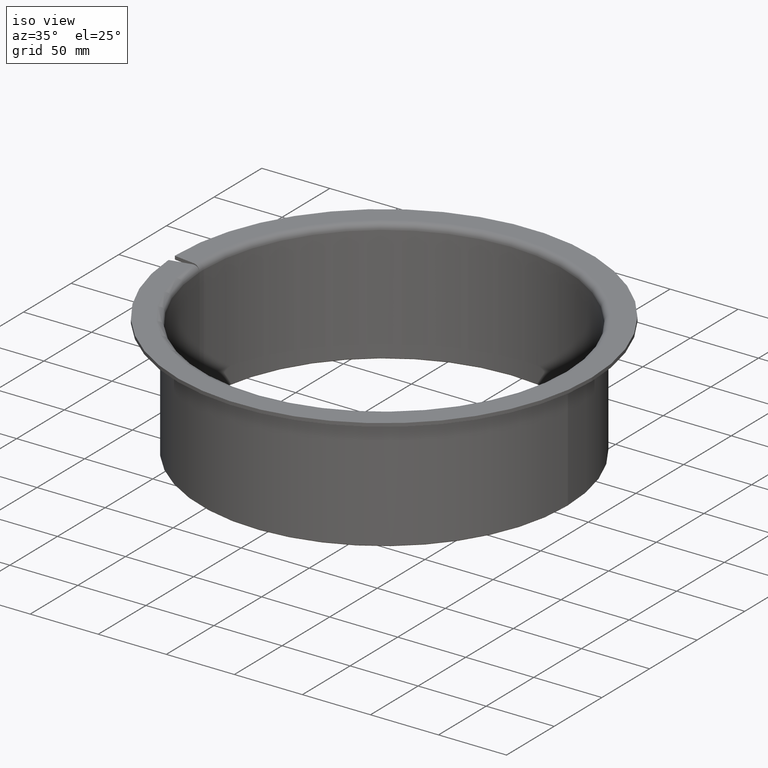
[diagram: clean part render]
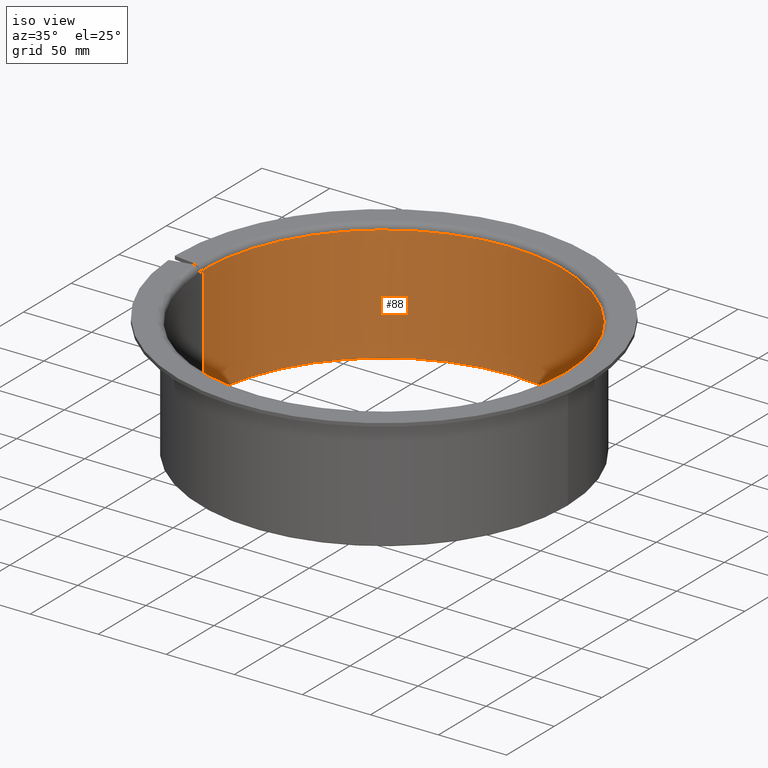
[diagram: same view with one face highlighted and labeled with its STEP entity id]
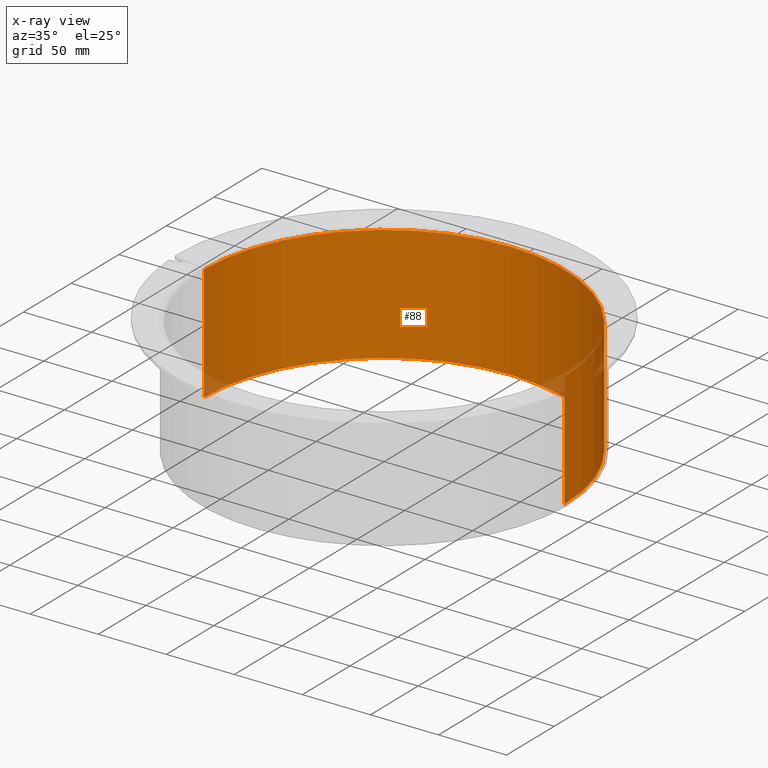
[diagram: x-ray of the same camera — body ghosted, the highlighted face saturated]
A machine part, iso view. The second image highlights one B-rep face of the part: STEP entity #88.
The next image is the same camera in x-ray: the body ghosted, the highlighted face saturated — about 2% of this face is hidden behind the body in this view.
In plain terms, the highlighted cylindrical surface (partial cylindrical patch) has radius 132.5 mm, axis along (-0, -0, 1).
Its self-contained STEP definition (entity closure, byte-faithful):
#88=ADVANCED_FACE('',(#128),#129,.F.);
#128=FACE_OUTER_BOUND('',#180,.T.);
#129=CYLINDRICAL_SURFACE('',#181,132.5);
#180=EDGE_LOOP('',(#297,#298,#299,#300));
#181=AXIS2_PLACEMENT_3D('',#301,#302,#303);
#297=ORIENTED_EDGE('',*,*,#457,.F.);
#298=ORIENTED_EDGE('',*,*,#418,.F.);
#299=ORIENTED_EDGE('',*,*,#455,.F.);
#300=ORIENTED_EDGE('',*,*,#458,.T.);
#301=CARTESIAN_POINT('',(-2.8295281413662E-030,-1.49014960731379E-015,43.0));
#302=DIRECTION('',(-1.16269284789061E-031,-6.12323399573677E-017,1.0));
#303=DIRECTION('',(-1.0,1.88237377125682E-015,-1.00713410063059E-033));
#418=EDGE_CURVE('',#476,#485,#488,.T.);
#455=EDGE_CURVE('',#540,#476,#555,.T.);
#457=EDGE_CURVE('',#485,#549,#557,.T.);
#458=EDGE_CURVE('',#540,#549,#558,.T.);
#476=VERTEX_POINT('',#578);
#485=VERTEX_POINT('',#590);
#488=CIRCLE('',#594,132.5);
#540=VERTEX_POINT('',#671);
#549=VERTEX_POINT('',#701);
#555=LINE('',#728,#729);
#557=LINE('',#732,#733);
#558=CIRCLE('',#734,132.5);
#578=CARTESIAN_POINT('',(132.5,-2.64528869939357E-013,0.500000000000007));
#590=CARTESIAN_POINT('',(-132.5,2.66753319621106E-013,0.500000000000007));
#594=AXIS2_PLACEMENT_3D('',#787,#788,#789);
#671=CARTESIAN_POINT('',(132.5,-2.69733618835733E-013,85.5));
#701=CARTESIAN_POINT('',(-132.5,2.6154857072473E-013,85.5));
#728=CARTESIAN_POINT('',(132.5,-2.67131244387545E-013,43.0));
#729=VECTOR('',#865,1.0);
#732=CARTESIAN_POINT('',(-132.5,2.64150945172918E-013,43.0));
#733=VECTOR('',#867,1.0);
#734=AXIS2_PLACEMENT_3D('',#868,#869,#870);
#787=CARTESIAN_POINT('',(1.38670259942823E-030,7.30296441936522E-016,0.500000000000006));
#788=DIRECTION('',(-1.16269284789061E-031,-6.12323399573677E-017,1.0));
#789=DIRECTION('',(-1.0,1.88237377125682E-015,-1.00713410063059E-033));
#865=DIRECTION('',(1.16269284789061E-031,6.12323399573677E-017,-1.0));
#867=DIRECTION('',(-1.16269284789061E-031,-6.12323399573677E-017,1.0));
#868=CARTESIAN_POINT('',(-7.04575888216064E-030,-3.7105956565641E-015,85.5));
#869=DIRECTION('',(-1.16269284789061E-031,-6.12323399573677E-017,1.0));
#870=DIRECTION('',(-1.0,1.88237377125682E-015,-1.00713410063059E-033));